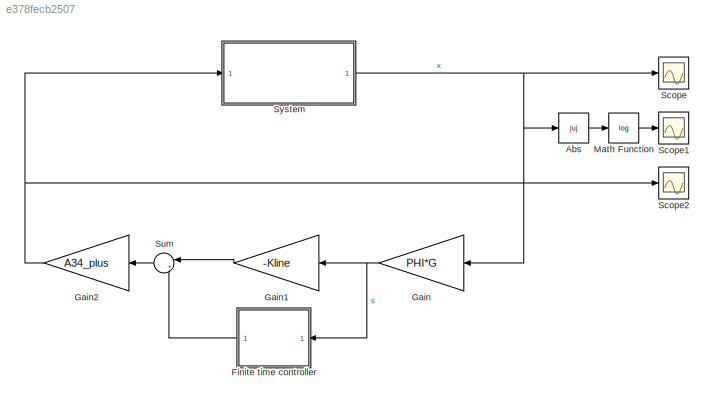
MODEL slx_e378fecb2507
KIND model
CONFIG AbsTol = auto
CONFIG EnableMultiTasking = off
CONFIG FixedStep = 0.001
CONFIG MaxStep = auto
CONFIG MinStep = auto
CONFIG RelTol = 1e-3
CONFIG SampleTimeConstraint = Unconstrained
CONFIG SolverName = FixedStepAuto
CONFIG StartTime = 0.0
CONFIG StopTime = 50
BLOCK [Abs] Abs
  SaturateOnIntegerOverflow = off
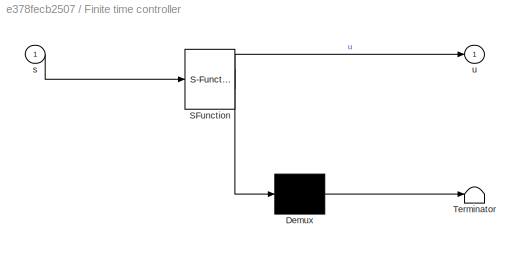
BLOCK [SubSystem] Finite time controller
  ErrorFcn = Stateflow.Translate.translate
  PermitHierarchicalResolution = ExplicitOnly
  Ports = [1, 1]
  RequestExecContextInheritance = off
  SFBlockType = MATLAB Function
  TreatAsAtomicUnit = on
BLOCK [Demux] Finite time controller/ Demux 
  Outputs = 1
  Ports = [1, 1]
BLOCK [S-Function] Finite time controller/ SFunction 
  EnableBusSupport = on
  FunctionName = sf_sfun
  Parameters = K,P,mui
  PortCounts = [1 2]
  Ports = [1, 2]
  SFcnIsStateOwnerBlock = off
  SFunctionDeploymentMode = off
  Tag = Stateflow S-Function 2
BLOCK [Terminator] Finite time controller/ Terminator 
BLOCK [Inport] Finite time controller/s
BLOCK [Outport] Finite time controller/u
BLOCK [Gain] Gain
  Gain = PHI*G
  Multiplication = Matrix(K*u)
BLOCK [Gain] Gain1
  Gain = -Kline
  Multiplication = Matrix(K*u)
BLOCK [Gain] Gain2
  Gain = A34_plus
  Multiplication = Matrix(K*u)
BLOCK [Math] Math Function
  Operator = log
  Ports = [1, 1]
BLOCK [Scope] Scope
  Floating = off
  NumInputPorts = 1
  Ports = [1]
  ScopeSpecificationString = Simulink.scopes.TimeScopeBlockCfg('CurrentConfiguration', extmgr.ConfigurationSet(extmgr.Configuration('Core','General UI',true),extmgr.Configuration('Core','Source UI',true),extmgr.Configuration('Sources','WiredSimulink',true,'DataLogging',true,'DataLoggingVariableName','x','DataLoggingSaveFormat','Array'),extmgr.Configuration('Visuals','Time Domain',true,'SerializedDisplays',{struct('MinYLimReal...<+1465ch>
BLOCK [Scope] Scope1
  Floating = off
  NumInputPorts = 1
  Ports = [1]
  ScopeSpecificationString = Simulink.scopes.TimeScopeBlockCfg('CurrentConfiguration', extmgr.ConfigurationSet(extmgr.Configuration('Core','General UI',true),extmgr.Configuration('Core','Source UI',true),extmgr.Configuration('Sources','WiredSimulink',true),extmgr.Configuration('Visuals','Time Domain',true,'SerializedDisplays',{struct('MinYLimReal','-837.69626','MaxYLimReal','94.86563','YLabelReal','','MinYLimMag',' 0.00000','...<+1775ch>
BLOCK [Scope] Scope2
  Floating = off
  NumInputPorts = 1
  Ports = [1]
  ScopeSpecificationString = Simulink.scopes.TimeScopeBlockCfg('CurrentConfiguration', extmgr.ConfigurationSet(extmgr.Configuration('Core','General UI',true),extmgr.Configuration('Core','Source UI',true),extmgr.Configuration('Sources','WiredSimulink',true,'DataLogging',true,'DataLoggingVariableName','u','DataLoggingSaveFormat','Array'),extmgr.Configuration('Visuals','Time Domain',true,'SerializedDisplays',{struct('MinYLimReal...<+1459ch>
BLOCK [Sum] Sum
  Inputs = |++
  Ports = [2, 1]
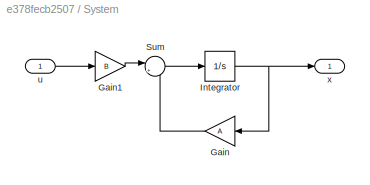
BLOCK [SubSystem] System
  Ports = [1, 1]
  RequestExecContextInheritance = off
BLOCK [Gain] System/Gain
  Gain = A
  Multiplication = Matrix(K*u)
BLOCK [Gain] System/Gain1
  Gain = B
  Multiplication = Matrix(K*u)
BLOCK [Integrator] System/Integrator
  InitialCondition = x0
  Ports = [1, 1]
BLOCK [Sum] System/Sum
  Inputs = |++
  Ports = [2, 1]
BLOCK [Inport] System/u
BLOCK [Outport] System/x
LINE Abs:1 -> Math Function:1
LINE Finite time controller:1 -> Sum:2
LINE Gain1:1 -> Sum:1
NET Gain2:1 -> Scope2:1, System:1
NET Gain:1 -> Finite time controller:1, Gain1:1
LINE Math Function:1 -> Scope1:1
LINE Sum:1 -> Gain2:1
LINE System/Gain1:1 -> System/Sum:1
LINE System/Gain:1 -> System/Sum:2
NET System/Integrator:1 -> System/Gain:1, System/x:1
LINE System/Sum:1 -> System/Integrator:1
LINE System/u:1 -> System/Gain1:1
NET System:1 -> Abs:1, Gain:1, Scope:1
note: NET lines group one-source signal fan-out (src -> all destinations, sorted); 1:1 wires keep LINE
CHART Finite time controller states=1 transitions=1
  STATE_LABEL 'eML_blk_kernel()'
  STATE_LABEL "SCRIPT:\nfunction u = fcn(s,P, mui,K)\n%This function is used to create the finite time stibilization command\n%P, mui,K,Vmax, Vmin are parameters definied at the main program\n%s is the state variable for the system after applying the Block\n%Decomposition method\n% This function represents the implicity Lyaponuv function Q\nf=@(x)(s'*[x^(-1-2*mui) 0 0;0 x^(-1-1*mui) 0;0 0 x^(-1)]*P*[x^(-1-2*mui) 0 0;0 ...<+407ch>"
CHART  states=0 transitions=0
